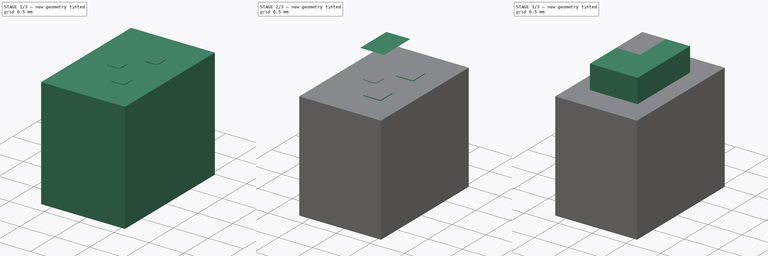
[diagram: build sequence overview — one tinted view per stage of 3, left to right]
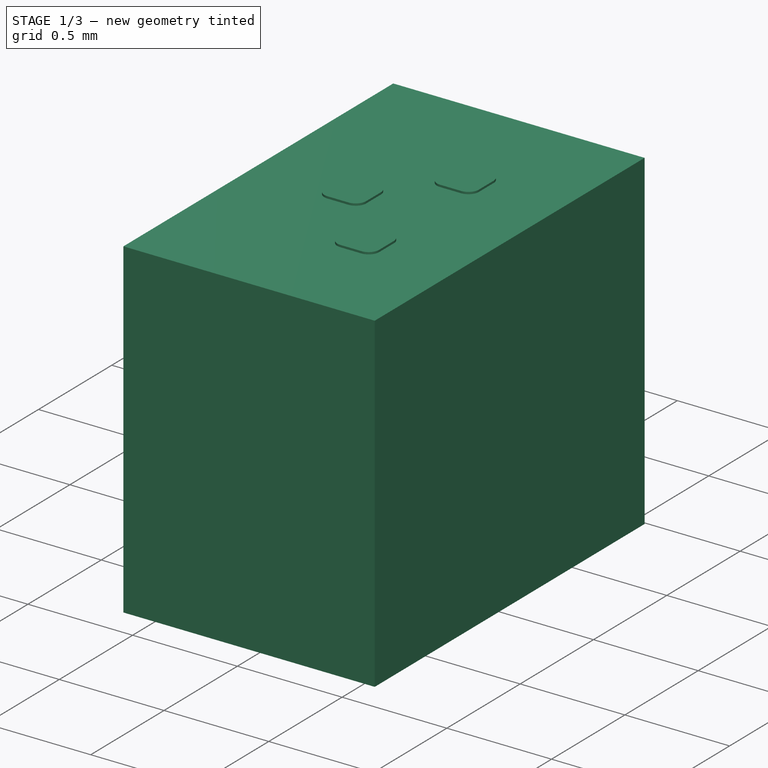
[diagram: stage 1 of 3 — iso view after this stage's code; geometry added in this stage tinted green]
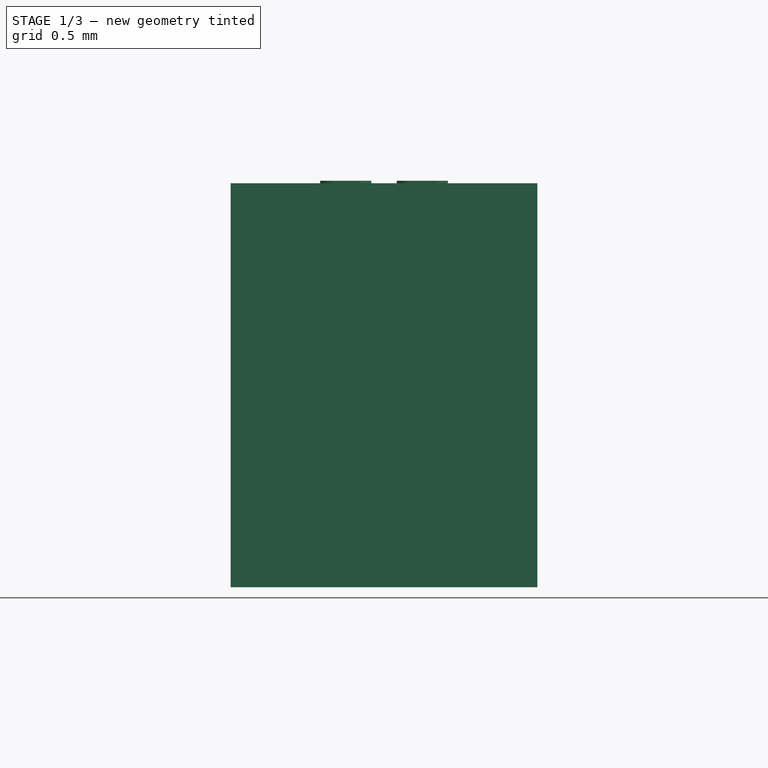
[diagram: stage 1 of 3 — front view after this stage's code; geometry added in this stage tinted green]
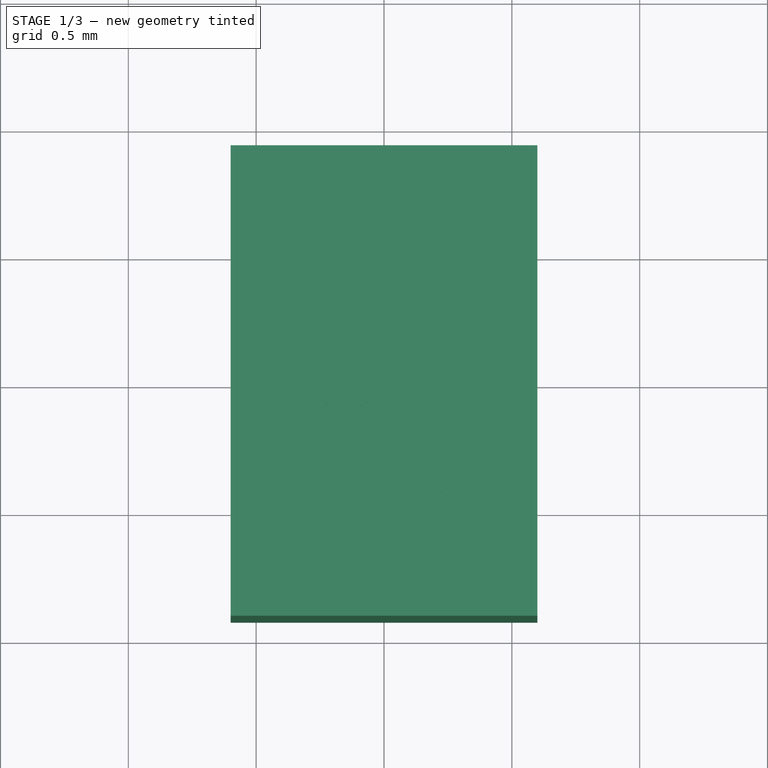
[diagram: stage 1 of 3 — top view after this stage's code; geometry added in this stage tinted green]
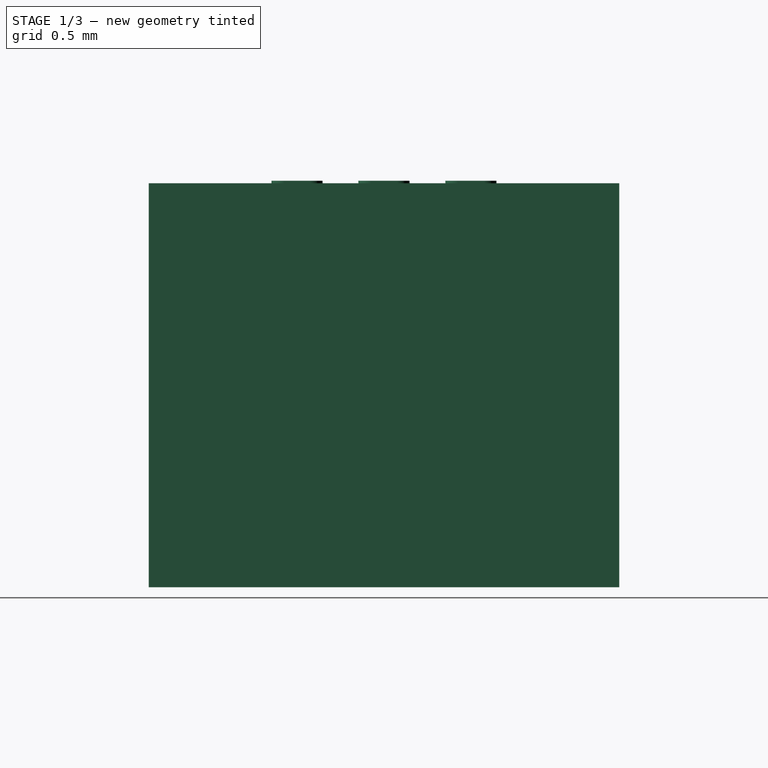
[diagram: stage 1 of 3 — right view after this stage's code; geometry added in this stage tinted green]
FCSTD DOCUMENT  (FreeCAD 0.17R13522 (Git))
Label: TI_XSON_DMX
License: All rights reserved
LicenseURL: http://en.wikipedia.org/wiki/All_rights_reserved
objects: Sketcher::SketchObject×5, PartDesign::Pad×5, PartDesign::Body×5, Part::FeaturePython×3, PartDesign::Plane×1, App::DocumentObjectGroup×1, Part::Feature×1
note: 25 computed .brp shape members not serialized (recipe doc carries the construction recipe); baked Part::Feature solids carry a one-line shape summary decoded from their .brp

FEATURE [PartDesign::Body] Body004  label="Pin1_index"
  Group = -> [DatumPlane,Sketch004,Pad004]
  Origin = -> Origin004
  Tip = -> Pad004
FEATURE [Part::FeaturePython] FCrtYd_lines  label="FCrtYd"  # a2plus imported part (geometry in sourceFile) (typed FeaturePython)
  fixedPosition = true
FEATURE [Part::FeaturePython] TopPads  # a2plus imported part (geometry in sourceFile) (typed FeaturePython)
  fixedPosition = true
FEATURE [Part::FeaturePython] newPCB  label="Pcb"  # a2plus imported part (geometry in sourceFile) (typed FeaturePython)
  fixedPosition = true
FEATURE [App::DocumentObjectGroup] TI_DMX_X2SON_fp
  Group = -> [FCrtYd_lines,TopPads,newPCB]
FEATURE [Part::Feature] Shape001  label="TI_XSON_DMX"
  shape: bbox 0.7 x 1.1 x 0.401 mm, 24 faces (baked)
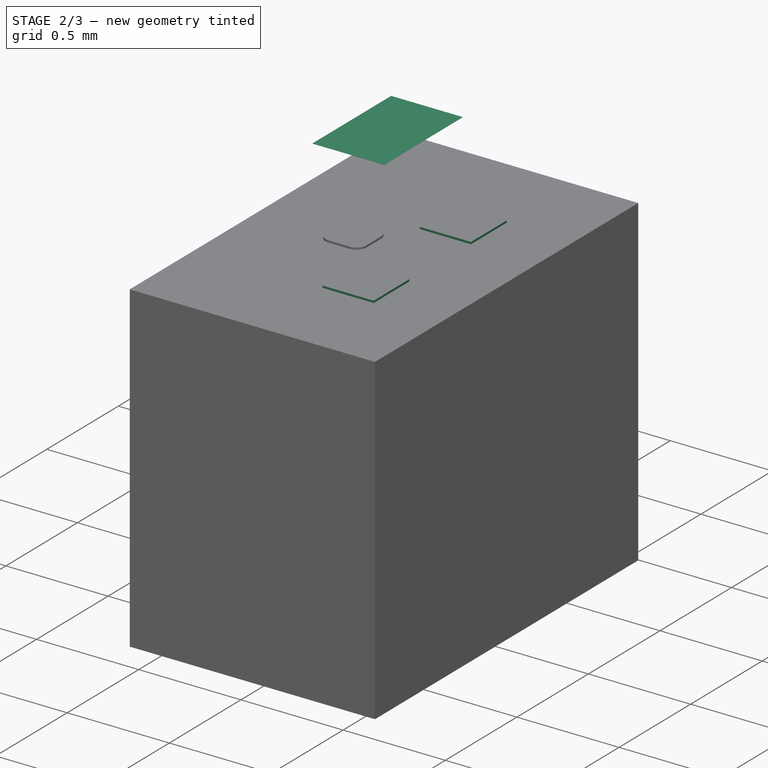
[diagram: stage 2 of 3 — iso view after this stage's code; geometry added in this stage tinted green]
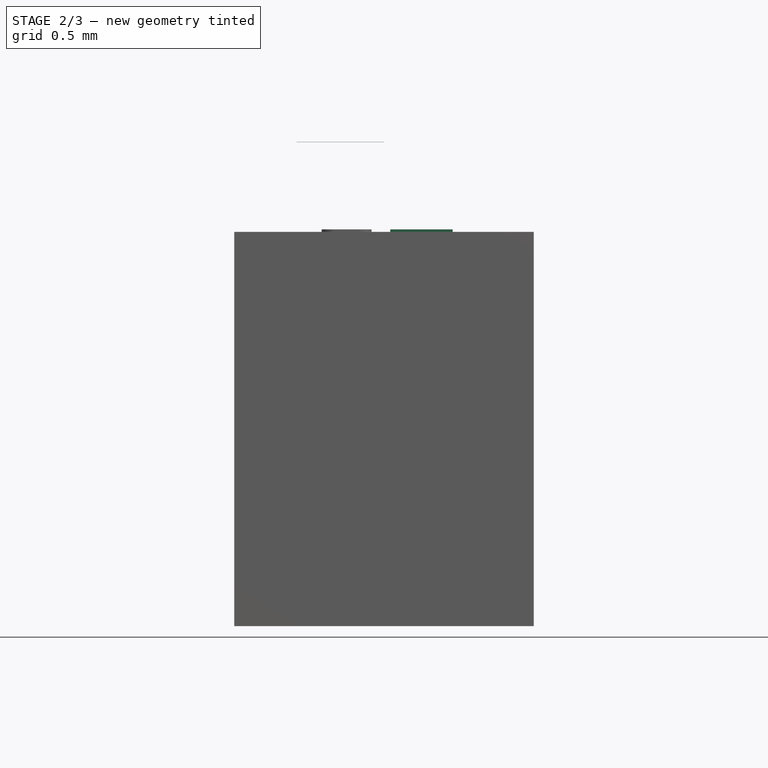
[diagram: stage 2 of 3 — front view after this stage's code; geometry added in this stage tinted green]
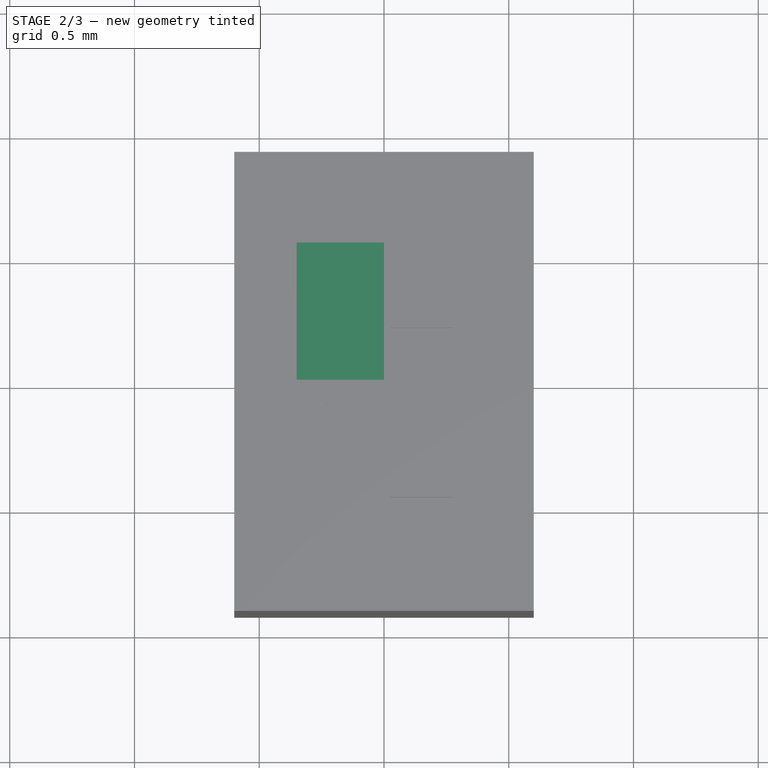
[diagram: stage 2 of 3 — top view after this stage's code; geometry added in this stage tinted green]
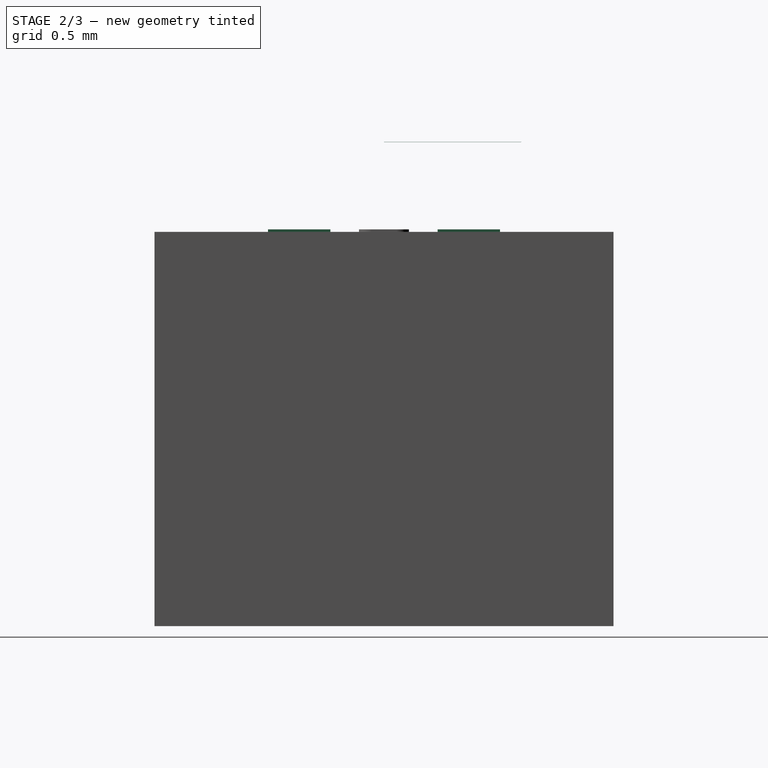
[diagram: stage 2 of 3 — right view after this stage's code; geometry added in this stage tinted green]
FEATURE [PartDesign::Body] Body001  label="Pin1"
  Group = -> [Sketch001,Pad001]
  Origin = -> Origin001
  Tip = -> Pad001
FEATURE [Sketcher::SketchObject] Sketch002
  MapMode = 5
  Support = -> [XY_Plane002]
  expr: Constraints[19] = 0.68000000000000005 / 2
  sketch-geometry (6):
    g0: LineSegment StartX=0.025 StartY=-0.465 StartZ=0 EndX=0.275 EndY=-0.465 EndZ=0
    g1: LineSegment StartX=0.275 StartY=-0.465 StartZ=0 EndX=0.275 EndY=-0.215 EndZ=0
    g2: LineSegment StartX=0.275 StartY=-0.215 StartZ=0 EndX=0.025 EndY=-0.215 EndZ=0
    g3: LineSegment StartX=0.025 StartY=-0.215 StartZ=0 EndX=0.025 EndY=-0.465 EndZ=0
    g4: LineSegment [constr] StartX=0.025 StartY=-0.34 StartZ=0 EndX=0.275 EndY=-0.34 EndZ=0
    g5: LineSegment [constr] StartX=0.15 StartY=-0.215 StartZ=0 EndX=0.15 EndY=-0.465 EndZ=0
  constraints (20):
    c: Coincident(g0,g1)
    c: Coincident(g1,g2)
    c: Coincident(g2,g3)
    c: Coincident(g3,g0)
    c: Horizontal(g0)
    c: Horizontal(g2)
    c: Vertical(g1)
    c: Vertical(g3)
    c: DistanceX(g0,g0) = 0.25
    c: Equal(g0,g1)
    c: PointOnObject(g4,g3)
    c: PointOnObject(g4,g1)
    c: PointOnObject(g5,g2)
    c: PointOnObject(g5,g0)
    c: Vertical(g5)
    c: Horizontal(g4)
    c: Symmetric(g1,g2,g5)
    c: Symmetric(g1,g0,g4)
    c: DistanceX(g-1,g5) = 0.15
    c: DistanceY(g4,g-1) = 0.34
FEATURE [PartDesign::Pad] Pad002
  Length = 0.05
  Length2 = 100
  Profile = -> Sketch002
  Refine = true
  Reversed = true
  Type = 0
FEATURE [PartDesign::Body] Body002  label="Pin2"
  Group = -> [Sketch002,Pad002]
  Origin = -> Origin002
  Tip = -> Pad002
FEATURE [Sketcher::SketchObject] Sketch003
  MapMode = 5
  Support = -> [XY_Plane003]
  sketch-geometry (6):
    g0: LineSegment StartX=0.025 StartY=0.465 StartZ=0 EndX=0.275 EndY=0.465 EndZ=0
    g1: LineSegment StartX=0.275 StartY=0.465 StartZ=0 EndX=0.275 EndY=0.215 EndZ=0
    g2: LineSegment StartX=0.275 StartY=0.215 StartZ=0 EndX=0.025 EndY=0.215 EndZ=0
    g3: LineSegment StartX=0.025 StartY=0.215 StartZ=0 EndX=0.025 EndY=0.465 EndZ=0
    g4: LineSegment [constr] StartX=0.15 StartY=0.465 StartZ=0 EndX=0.15 EndY=0.215 EndZ=0
    g5: LineSegment [constr] StartX=0.275 StartY=0.34 StartZ=0 EndX=0.025 EndY=0.34 EndZ=0
  constraints (20):
    c: Coincident(g0,g1)
    c: Coincident(g1,g2)
    c: Coincident(g2,g3)
    c: Coincident(g3,g0)
    c: Horizontal(g0)
    c: Horizontal(g2)
    c: Vertical(g1)
    c: Vertical(g3)
    c: PointOnObject(g4,g0)
    c: PointOnObject(g5,g1)
    c: PointOnObject(g5,g3)
    c: PointOnObject(g4,g2)
    c: Horizontal(g5)
    c: Vertical(g4)
    c: Symmetric(g0,g0,g4)
    c: Symmetric(g0,g1,g5)
    c: DistanceX(g0,g0) = 0.25
    c: Equal(g0,g1)
    c: DistanceX(g-1,g4) = 0.15
    c: DistanceY(g-1,g5) = 0.34
FEATURE [PartDesign::Pad] Pad003
  Length = 0.05
  Length2 = 100
  Profile = -> Sketch003
  Refine = true
  Reversed = true
  Type = 0
FEATURE [PartDesign::Body] Body003  label="Pin3"
  Group = -> [Sketch003,Pad003]
  Origin = -> Origin003
  Tip = -> Pad003
FEATURE [PartDesign::Plane] DatumPlane
  AttachmentOffset = pos=(0,0,0.35) rot=(0,0,1;0rad)
  MapMode = 5
  Placement = pos=(0,0,0.35) rot=(0,0,1;0rad)
  Support = -> [XY_Plane004]
FEATURE [Sketcher::SketchObject] Sketch004
  MapMode = 5
  Placement = pos=(0,0,0.35) rot=(0,0,1;0rad)
  Support = -> [DatumPlane]
  sketch-geometry (8):
    g0: LineSegment StartX=0 StartY=0 StartZ=0 EndX=-0.35 EndY=0 EndZ=0
    g1: LineSegment StartX=-0.35 StartY=0 StartZ=0 EndX=-0.35 EndY=0.55 EndZ=0
    g2: LineSegment StartX=-0.35 StartY=0.55 StartZ=0 EndX=0 EndY=0.55 EndZ=0
    g3: LineSegment StartX=0 StartY=0.55 StartZ=0 EndX=0 EndY=0 EndZ=0
    g4: LineSegment [constr] StartX=0 StartY=0.55 StartZ=0 EndX=0.35 EndY=0.55 EndZ=0
    g5: LineSegment [constr] StartX=0.35 StartY=0.55 StartZ=0 EndX=0.35 EndY=-0.55 EndZ=0
    g6: LineSegment [constr] StartX=0.35 StartY=-0.55 StartZ=0 EndX=-0.35 EndY=-0.55 EndZ=0
    g7: LineSegment [constr] StartX=-0.35 StartY=-0.55 StartZ=0 EndX=-0.35 EndY=0 EndZ=0
  constraints (23):
    c: Coincident(g0,g1)
    c: Coincident(g1,g2)
    c: Coincident(g2,g3)
    c: Coincident(g3,g0)
    c: Horizontal(g0)
    c: Horizontal(g2)
    c: Vertical(g1)
    c: Vertical(g3)
    c: Coincident(g4,g2)
    c: Horizontal(g4)
    c: Coincident(g5,g4)
    c: Vertical(g5)
    c: Coincident(g6,g5)
    c: Horizontal(g6)
    c: Coincident(g7,g6)
    c: Coincident(g7,g0)
    c: Vertical(g7)
    c: Symmetric(g4,g1,g-2)
    c: Symmetric(g4,g5,g-1)
    c: DistanceY(g5,g5) = 1.1
    c: DistanceX(g6,g6) = 0.7
    c: DistanceX(g2,g2) = 0.35
    c: DistanceY(g1,g1) = 0.55
FEATURE [PartDesign::Pad] Pad004
  Length = 0.001
  Length2 = 100
  Placement = pos=(0,0,0.35) rot=(0,0,1;0rad)
  Profile = -> Sketch004
  Refine = true
  Type = 0
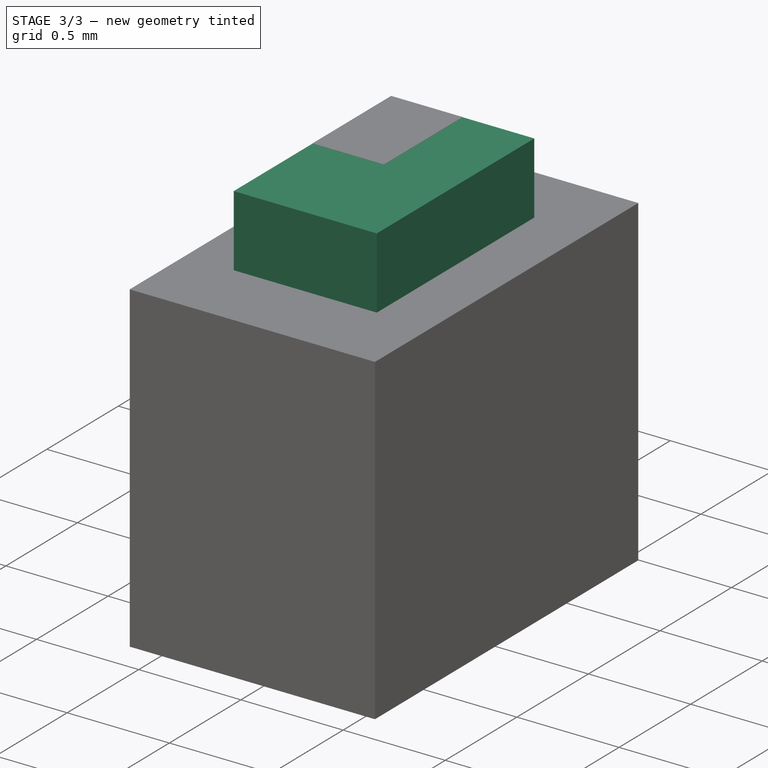
[diagram: stage 3 of 3 — iso view after this stage's code; geometry added in this stage tinted green]
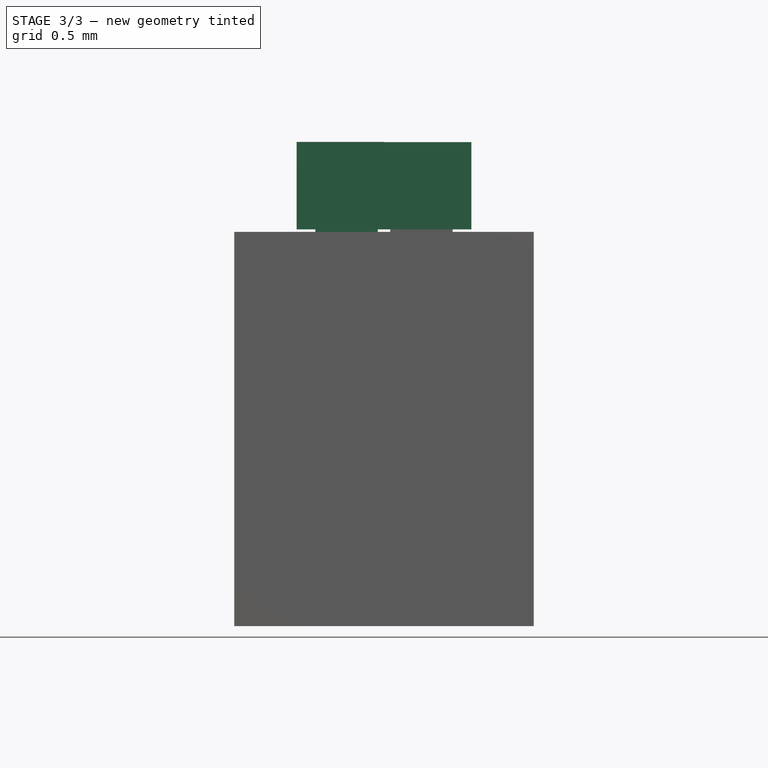
[diagram: stage 3 of 3 — front view after this stage's code; geometry added in this stage tinted green]
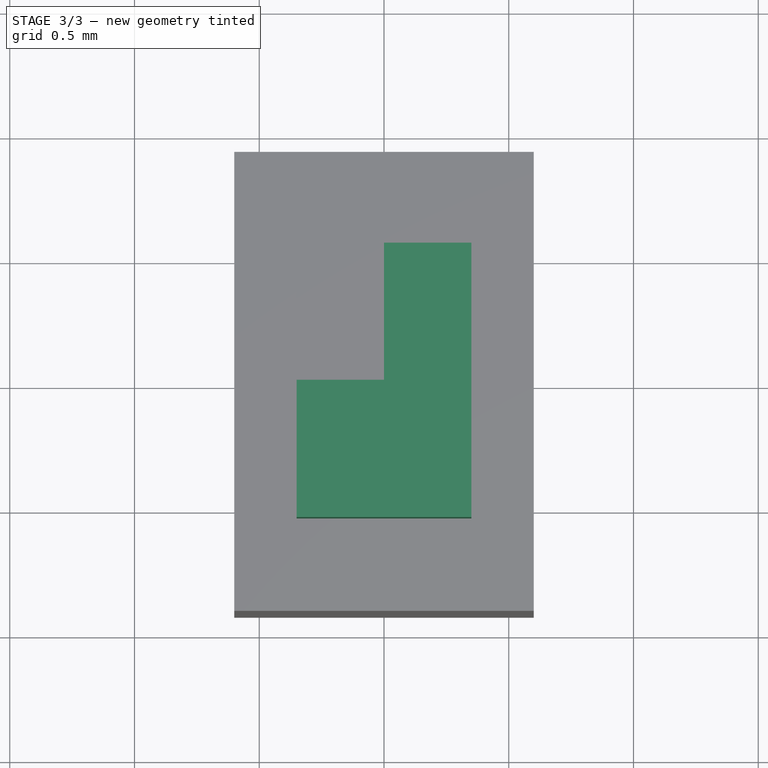
[diagram: stage 3 of 3 — top view after this stage's code; geometry added in this stage tinted green]
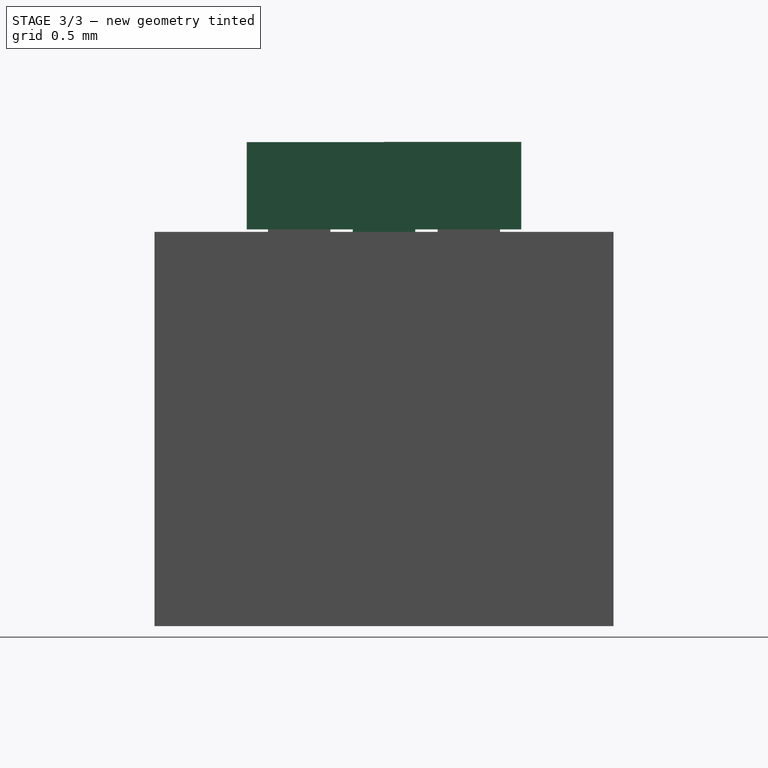
[diagram: stage 3 of 3 — right view after this stage's code; geometry added in this stage tinted green]
FEATURE [Sketcher::SketchObject] Sketch
  MapMode = 5
  Support = -> [XY_Plane]
  sketch-geometry (4):
    g0: LineSegment StartX=-0.35 StartY=0.55 StartZ=0 EndX=0.35 EndY=0.55 EndZ=0
    g1: LineSegment StartX=0.35 StartY=0.55 StartZ=0 EndX=0.35 EndY=-0.55 EndZ=0
    g2: LineSegment StartX=0.35 StartY=-0.55 StartZ=0 EndX=-0.35 EndY=-0.55 EndZ=0
    g3: LineSegment StartX=-0.35 StartY=-0.55 StartZ=0 EndX=-0.35 EndY=0.55 EndZ=0
  constraints (12):
    c: Coincident(g0,g1)
    c: Coincident(g1,g2)
    c: Coincident(g2,g3)
    c: Coincident(g3,g0)
    c: Horizontal(g0)
    c: Horizontal(g2)
    c: Vertical(g1)
    c: Vertical(g3)
    c: DistanceX(g0,g0) = 0.7
    c: DistanceY(g1,g1) = 1.1
    c: Symmetric(g0,g0,g-2)
    c: Symmetric(g0,g1,g-1)
FEATURE [PartDesign::Pad] Pad
  Length = 0.35
  Length2 = 100
  Profile = -> Sketch
  Refine = true
  Type = 0
  expr: Length = 0.40000000000000002 - 0.050000000000000003
FEATURE [PartDesign::Body] Body
  Group = -> [Sketch,Pad]
  Origin = -> Origin
  Tip = -> Pad
FEATURE [Sketcher::SketchObject] Sketch001
  MapMode = 5
  Support = -> [XY_Plane001]
  sketch-geometry (5):
    g0: LineSegment StartX=-0.275 StartY=0.125 StartZ=0 EndX=-0.025 EndY=0.125 EndZ=0
    g1: LineSegment StartX=-0.025 StartY=0.125 StartZ=0 EndX=-0.025 EndY=-0.125 EndZ=0
    g2: LineSegment StartX=-0.025 StartY=-0.125 StartZ=0 EndX=-0.275 EndY=-0.125 EndZ=0
    g3: LineSegment StartX=-0.275 StartY=-0.125 StartZ=0 EndX=-0.275 EndY=0.125 EndZ=0
    g4: LineSegment [constr] StartX=-0.15 StartY=0.125 StartZ=0 EndX=-0.15 EndY=-0.125 EndZ=0
  constraints (16):
    c: Coincident(g0,g1)
    c: Coincident(g1,g2)
    c: Coincident(g2,g3)
    c: Coincident(g3,g0)
    c: Horizontal(g0)
    c: Horizontal(g2)
    c: Vertical(g1)
    c: Vertical(g3)
    c: DistanceX(g0,g0) = 0.25
    c: Equal(g0,g1)
    c: Symmetric(g0,g2,g-1)
    c: PointOnObject(g4,g0)
    c: PointOnObject(g4,g2)
    c: Vertical(g4)
    c: Symmetric(g0,g0,g4)
    c: DistanceX(g4,g-1) = 0.15
FEATURE [PartDesign::Pad] Pad001
  Length = 0.05
  Length2 = 100
  Profile = -> Sketch001
  Refine = true
  Reversed = true
  Type = 0
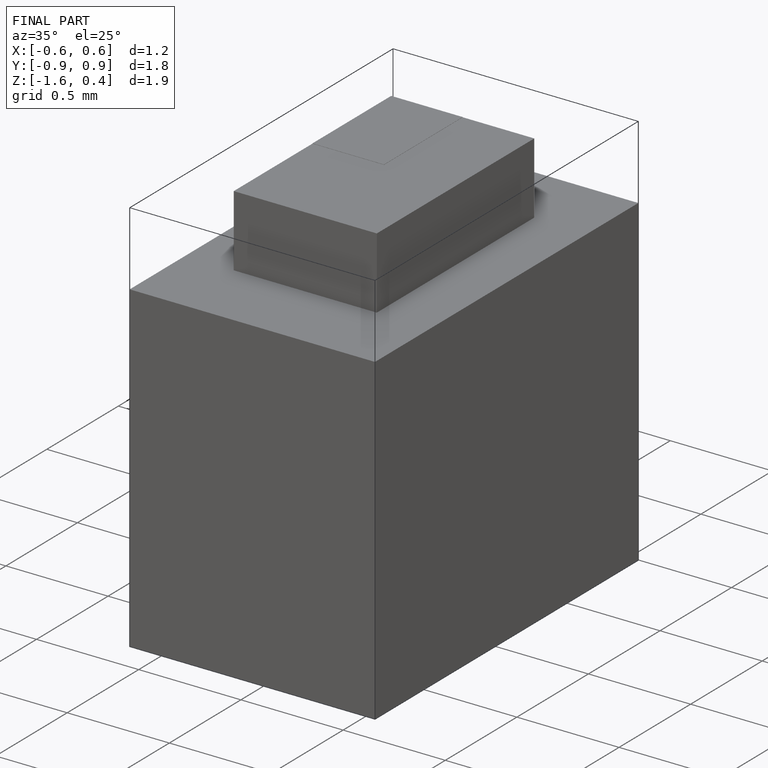
[diagram: finished part — iso view with bounding-box wireframe]
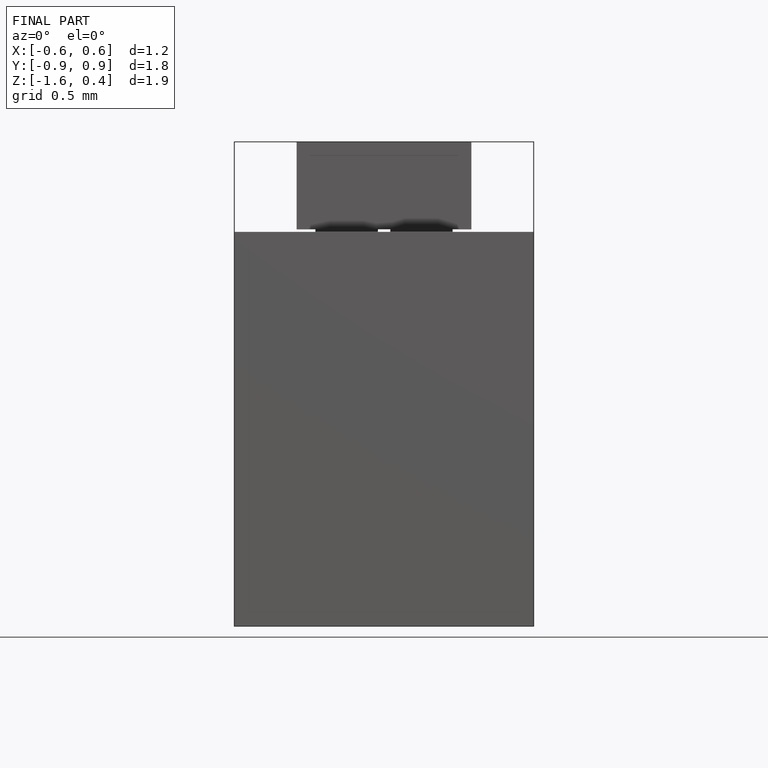
[diagram: finished part — front view with bounding-box wireframe]
